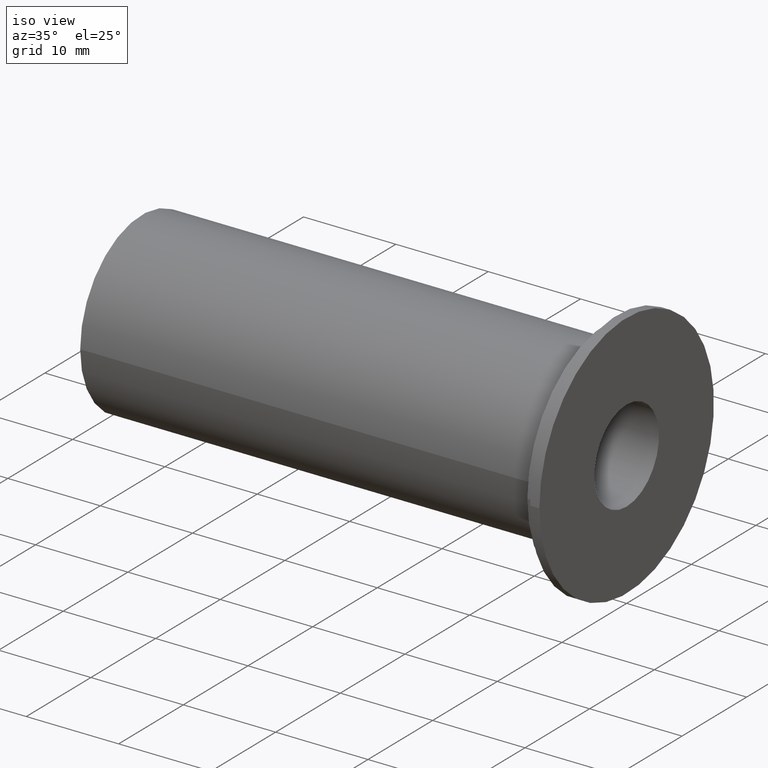
[diagram: clean part render]
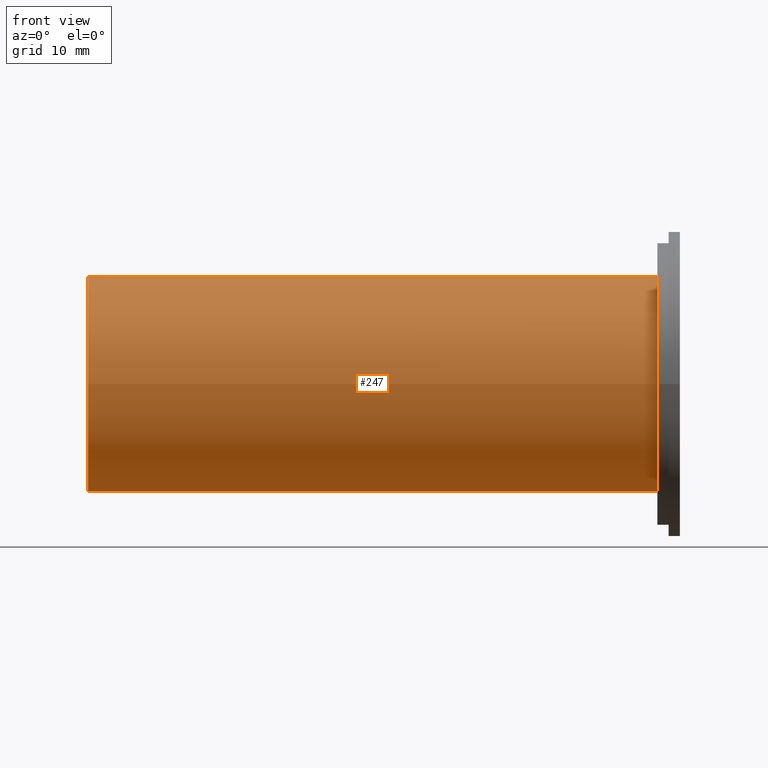
[diagram: tour spotlight — one face highlighted and labeled with its STEP entity id]
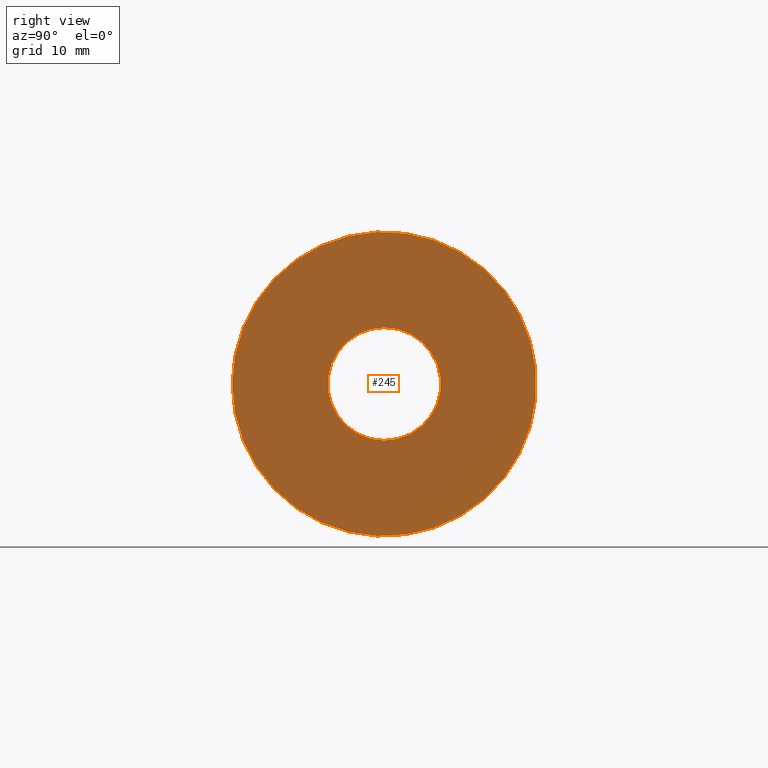
[diagram: tour spotlight — one face highlighted and labeled with its STEP entity id]
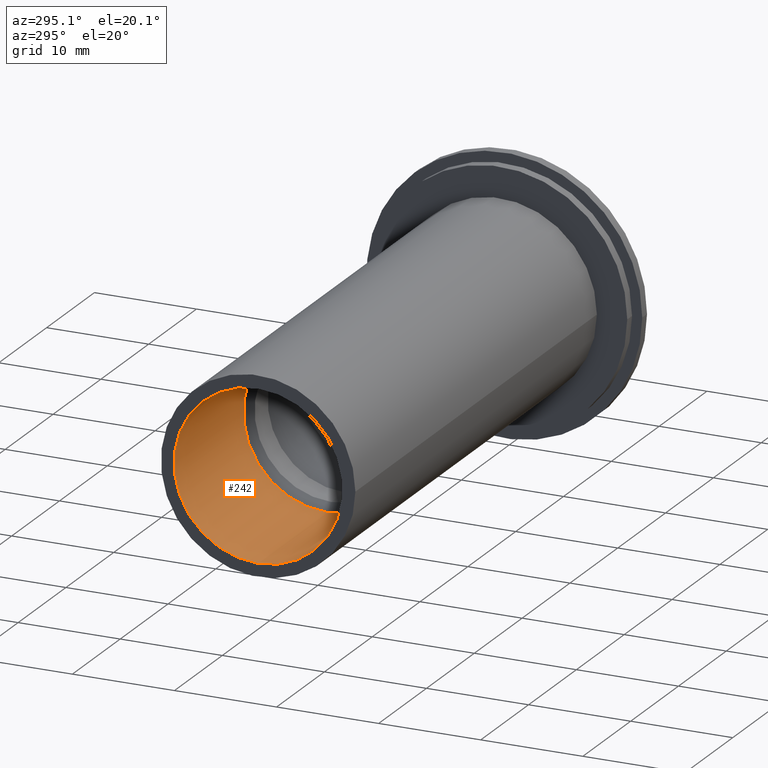
[diagram: tour spotlight — one face highlighted and labeled with its STEP entity id]
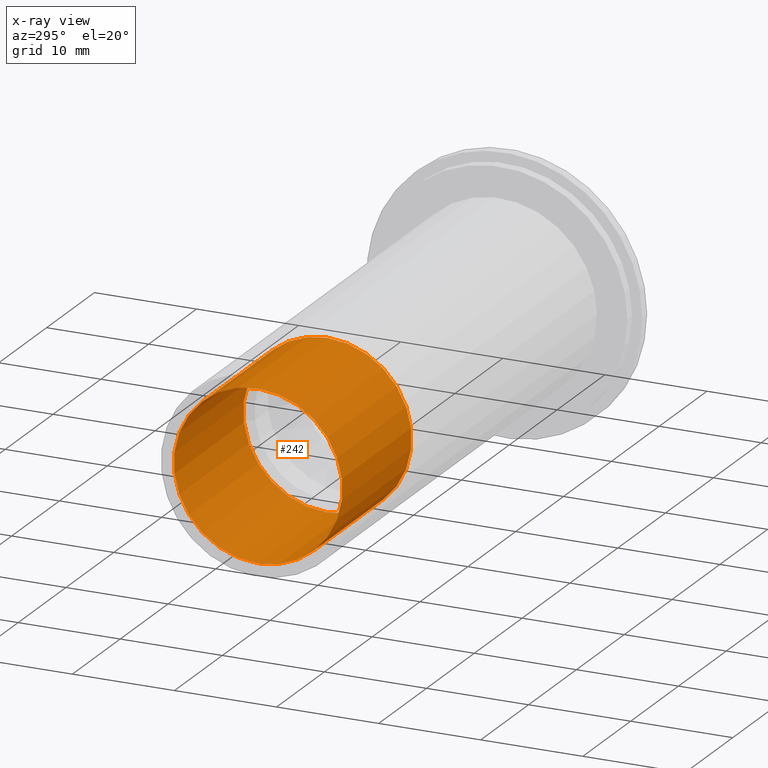
[diagram: x-ray of the same camera — body ghosted, this tour face saturated]
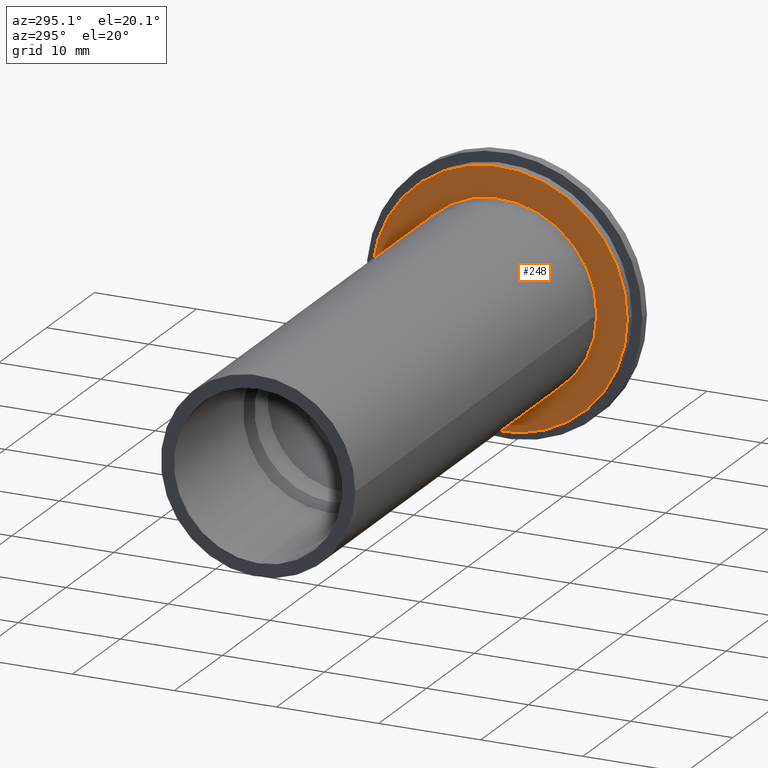
[diagram: tour spotlight — one face highlighted and labeled with its STEP entity id]
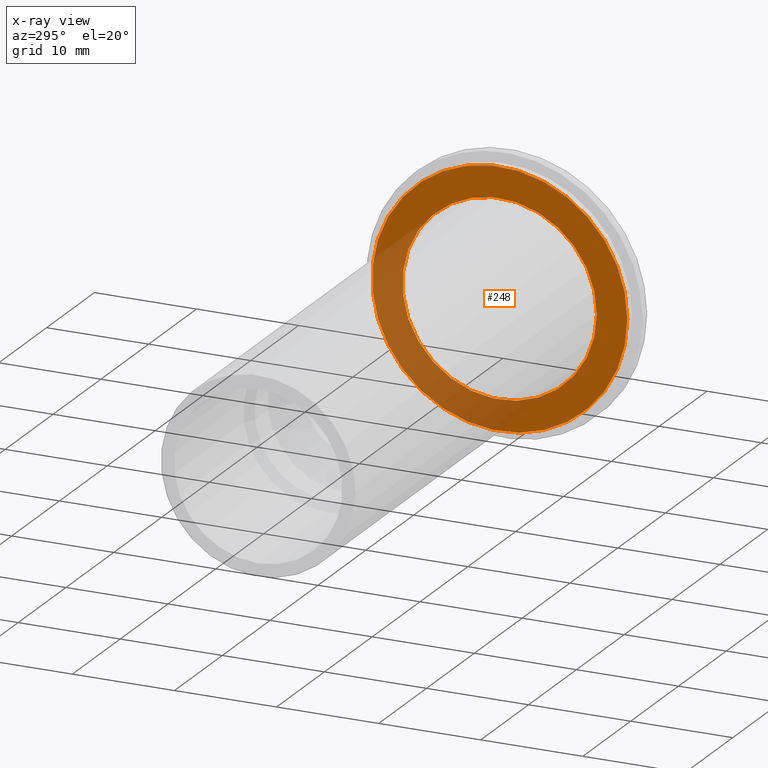
[diagram: x-ray of the same camera — body ghosted, this tour face saturated]
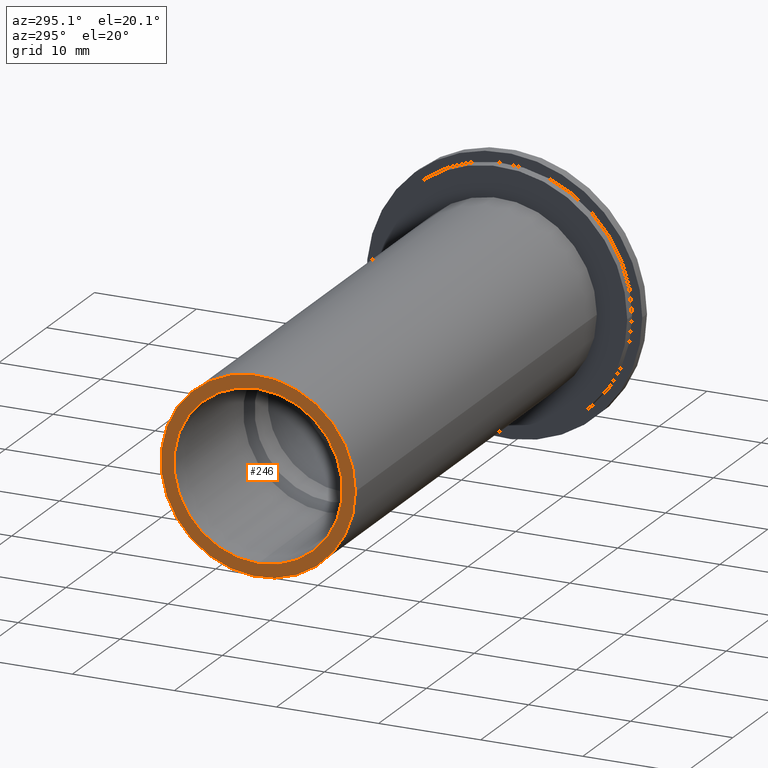
[diagram: tour spotlight — one face highlighted and labeled with its STEP entity id]
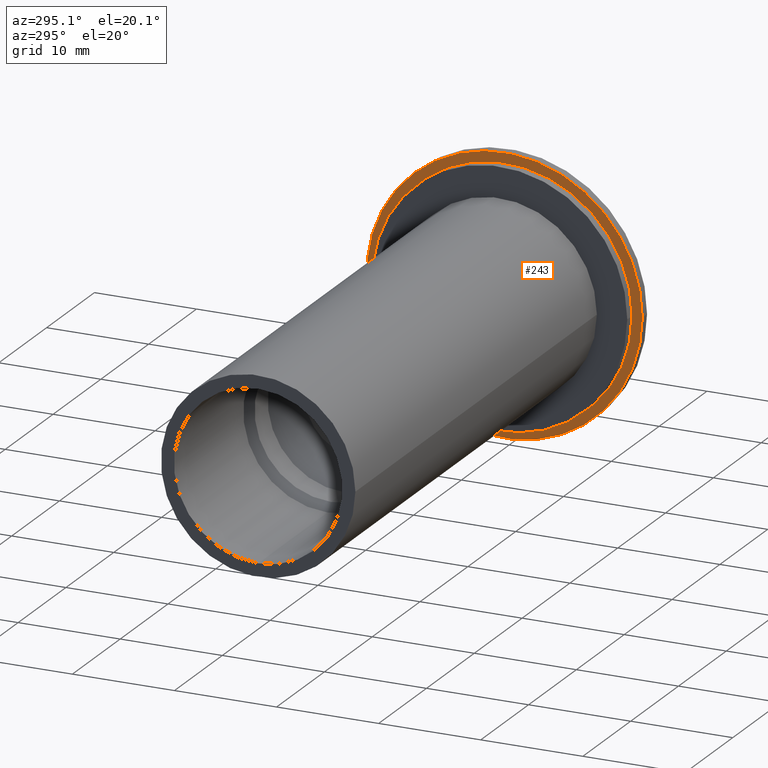
[diagram: tour spotlight — one face highlighted and labeled with its STEP entity id]
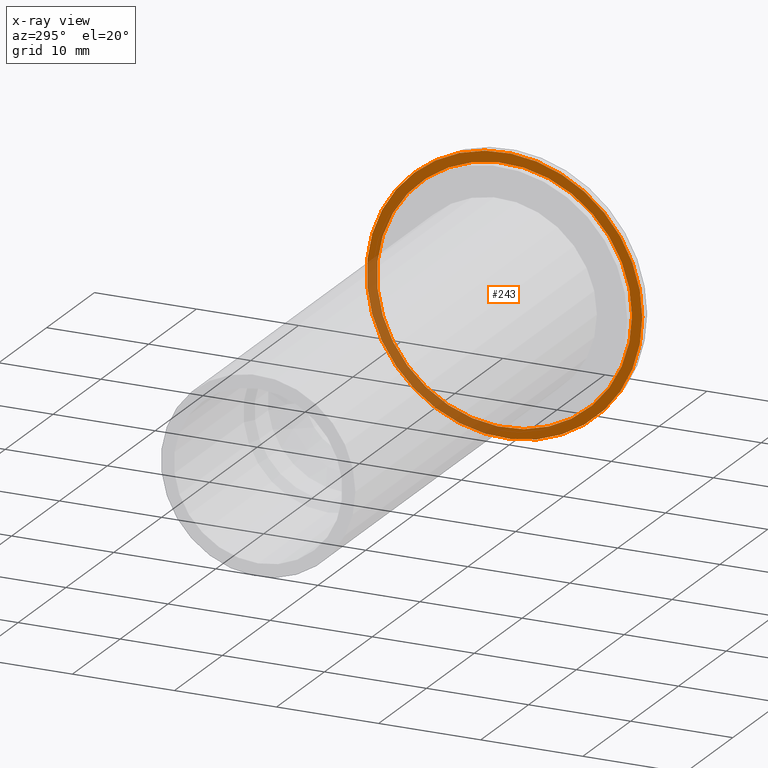
[diagram: x-ray of the same camera — body ghosted, this tour face saturated]
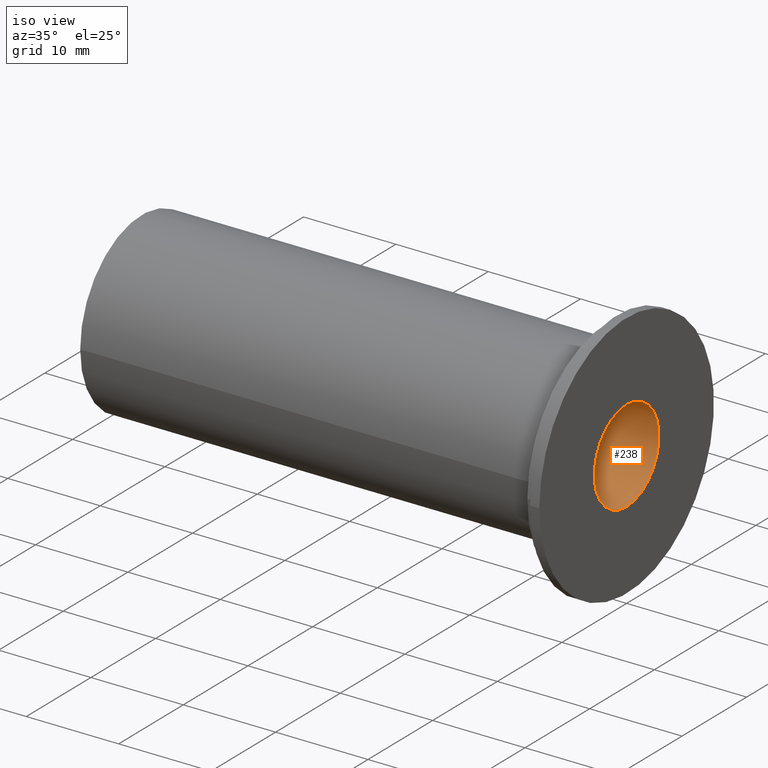
[diagram: tour spotlight — one face highlighted and labeled with its STEP entity id]
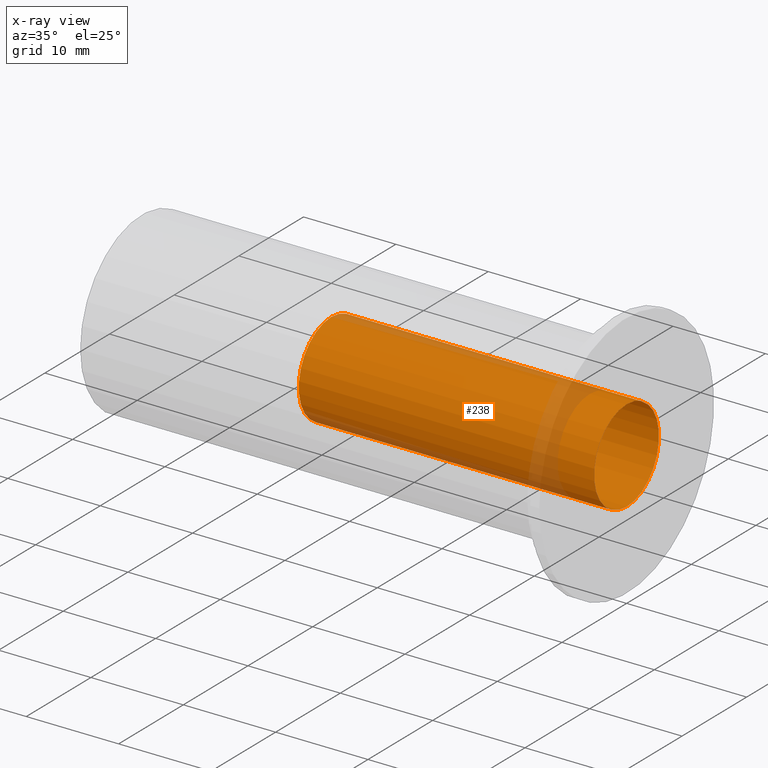
[diagram: x-ray of the same camera — body ghosted, this tour face saturated]
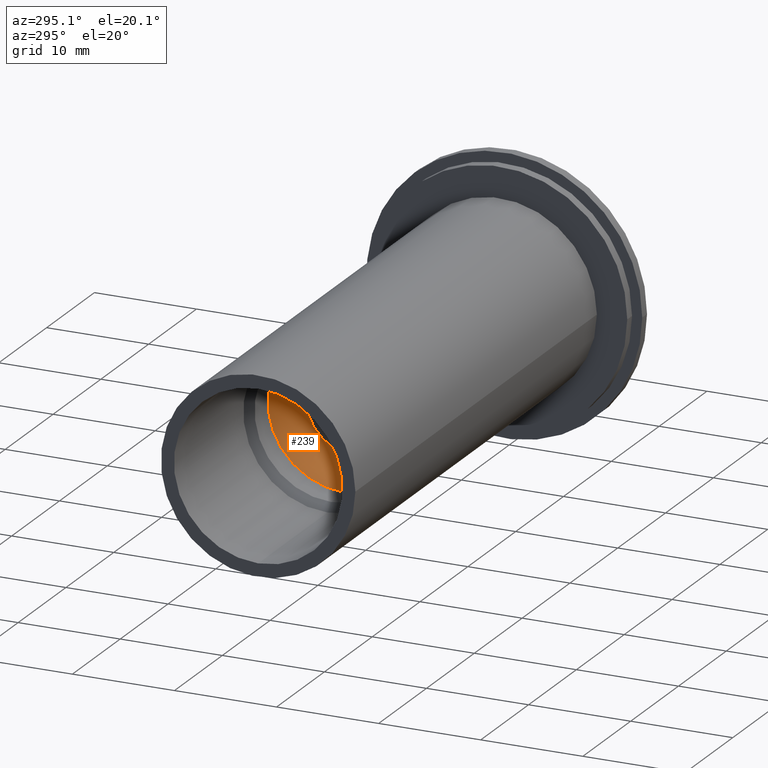
[diagram: tour spotlight — one face highlighted and labeled with its STEP entity id]
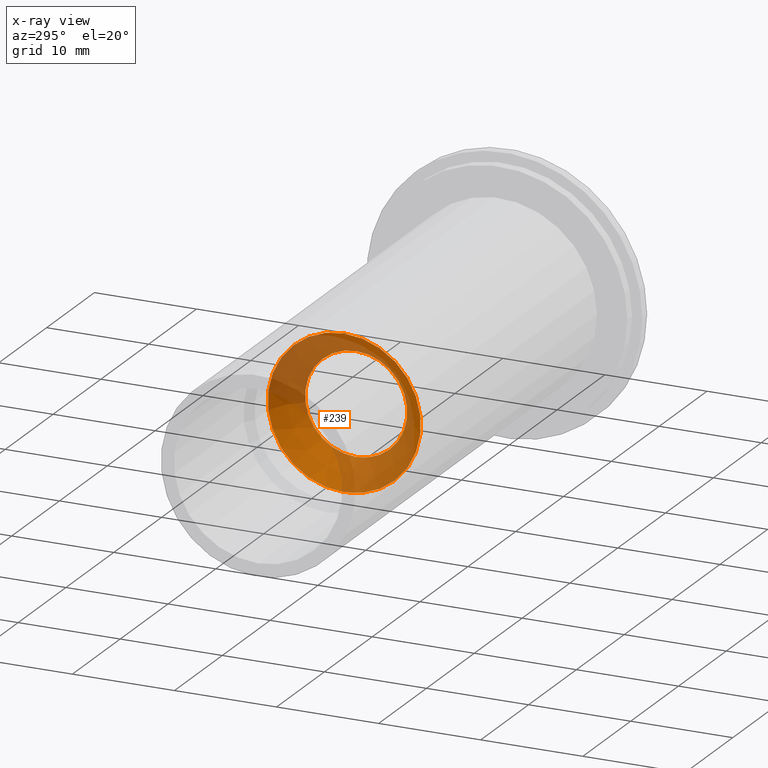
[diagram: x-ray of the same camera — body ghosted, this tour face saturated]
A machine part: a face-by-face anatomy tour. The part has 12 B-rep faces; the first image is the clean iso view, then the 8 largest visible faces are spotlighted one at a time (largest first), each with its STEP entity span.

Face 1 — front view, entity #247. In plain terms, the highlighted cylindrical surface (bore or boss wall) has radius 9.525 mm, axis along (1, 0, 0).
Definition (entity closure, byte-faithful):
#105=FACE_OUTER_BOUND('',#120,.T.);
#120=EDGE_LOOP('',(#222,#223,#224,#225));
#130=LINE('',#447,#138);
#138=VECTOR('',#366,9.525);
#150=CIRCLE('',#292,9.525);
#151=CIRCLE('',#294,9.525);
#166=VERTEX_POINT('',#442);
#167=VERTEX_POINT('',#445);
#185=EDGE_CURVE('',#166,#166,#150,.T.);
#186=EDGE_CURVE('',#167,#167,#151,.T.);
#187=EDGE_CURVE('',#167,#166,#130,.T.);
#222=ORIENTED_EDGE('',*,*,#186,.F.);
#223=ORIENTED_EDGE('',*,*,#187,.T.);
#224=ORIENTED_EDGE('',*,*,#185,.T.);
#225=ORIENTED_EDGE('',*,*,#187,.F.);
#236=CYLINDRICAL_SURFACE('',#293,9.525);
#247=ADVANCED_FACE('',(#105),#236,.T.);
#292=AXIS2_PLACEMENT_3D('',#443,#360,#361);
#293=AXIS2_PLACEMENT_3D('',#444,#362,#363);
#294=AXIS2_PLACEMENT_3D('',#446,#364,#365);
#360=DIRECTION('center_axis',(1.,0.,0.));
#361=DIRECTION('ref_axis',(0.,0.,-1.));
#362=DIRECTION('center_axis',(1.,0.,0.));
#363=DIRECTION('ref_axis',(0.,1.,0.));
#364=DIRECTION('center_axis',(1.,0.,0.));
#365=DIRECTION('ref_axis',(0.,0.,-1.));
#366=DIRECTION('',(-1.,0.,0.));
#442=CARTESIAN_POINT('',(-52.5,-9.525,-1.16647607618785E-15));
#443=CARTESIAN_POINT('Origin',(-52.5,0.,0.));
#444=CARTESIAN_POINT('Origin',(-27.25,0.,0.));
#445=CARTESIAN_POINT('',(-2.,-9.525,-1.16647607618785E-15));
#446=CARTESIAN_POINT('Origin',(-2.,0.,0.));
#447=CARTESIAN_POINT('',(-27.25,-9.525,-1.16647607618785E-15));

Face 2 — right view, entity #245. In plain terms, the highlighted planar face has unit normal (1, 0, 0).
Definition (entity closure, byte-faithful):
#87=FACE_BOUND('',#117,.T.);
#91=PLANE('',#290);
#103=FACE_OUTER_BOUND('',#116,.T.);
#116=EDGE_LOOP('',(#218));
#117=EDGE_LOOP('',(#219));
#140=CIRCLE('',#274,5.);
#149=CIRCLE('',#289,13.5);
#156=VERTEX_POINT('',#408);
#165=VERTEX_POINT('',#437);
#169=EDGE_CURVE('',#156,#156,#140,.T.);
#183=EDGE_CURVE('',#165,#165,#149,.T.);
#218=ORIENTED_EDGE('',*,*,#183,.T.);
#219=ORIENTED_EDGE('',*,*,#169,.T.);
#245=ADVANCED_FACE('',(#103,#87),#91,.T.);
#274=AXIS2_PLACEMENT_3D('',#409,#318,#319);
#289=AXIS2_PLACEMENT_3D('',#438,#353,#354);
#290=AXIS2_PLACEMENT_3D('',#440,#356,#357);
#318=DIRECTION('center_axis',(-1.,0.,0.));
#319=DIRECTION('ref_axis',(0.,0.,-1.));
#353=DIRECTION('center_axis',(1.,0.,0.));
#354=DIRECTION('ref_axis',(0.,0.,-1.));
#356=DIRECTION('center_axis',(1.,0.,0.));
#357=DIRECTION('ref_axis',(0.,0.,-1.));
#408=CARTESIAN_POINT('',(1.77635683940025E-14,-6.12323399573677E-16,5.));
#409=CARTESIAN_POINT('Origin',(1.77635683940025E-14,0.,0.));
#437=CARTESIAN_POINT('',(4.9960036108132E-15,-13.5,-1.65327317884893E-15));
#438=CARTESIAN_POINT('Origin',(4.9960036108132E-15,0.,0.));
#440=CARTESIAN_POINT('Origin',(1.33226762955019E-14,0.,0.));

Face 3 — auxiliary view, entity #242. An x-ray twin of the same camera follows (body ghosted, this face saturated) — the face is partly hidden behind the body. In plain terms, the highlighted cylindrical surface (bore or boss wall) has radius 8.25 mm, axis along (-1, 0, 0).
Definition (entity closure, byte-faithful):
#100=FACE_OUTER_BOUND('',#112,.T.);
#112=EDGE_LOOP('',(#208,#209,#210,#211));
#128=LINE('',#430,#136);
#136=VECTOR('',#344,8.25);
#145=CIRCLE('',#282,8.25);
#146=CIRCLE('',#284,8.25);
#161=VERTEX_POINT('',#424);
#162=VERTEX_POINT('',#428);
#177=EDGE_CURVE('',#161,#161,#145,.T.);
#179=EDGE_CURVE('',#162,#162,#146,.T.);
#180=EDGE_CURVE('',#162,#161,#128,.T.);
#208=ORIENTED_EDGE('',*,*,#179,.F.);
#209=ORIENTED_EDGE('',*,*,#180,.T.);
#210=ORIENTED_EDGE('',*,*,#177,.F.);
#211=ORIENTED_EDGE('',*,*,#180,.F.);
#234=CYLINDRICAL_SURFACE('',#283,8.25);
#242=ADVANCED_FACE('',(#100),#234,.F.);
#282=AXIS2_PLACEMENT_3D('',#425,#337,#338);
#283=AXIS2_PLACEMENT_3D('',#427,#340,#341);
#284=AXIS2_PLACEMENT_3D('',#429,#342,#343);
#337=DIRECTION('center_axis',(-1.,0.,0.));
#338=DIRECTION('ref_axis',(0.,0.,1.));
#340=DIRECTION('center_axis',(-1.,0.,0.));
#341=DIRECTION('ref_axis',(0.,0.,1.));
#342=DIRECTION('center_axis',(1.,0.,0.));
#343=DIRECTION('ref_axis',(0.,0.,1.));
#344=DIRECTION('',(1.,0.,0.));
#424=CARTESIAN_POINT('',(-38.,-1.01033360929657E-15,-8.25));
#425=CARTESIAN_POINT('Origin',(-38.,0.,0.));
#427=CARTESIAN_POINT('Origin',(-45.25,0.,0.));
#428=CARTESIAN_POINT('',(-52.5,-1.01033360929657E-15,-8.25));
#429=CARTESIAN_POINT('Origin',(-52.5,0.,0.));
#430=CARTESIAN_POINT('',(-45.25,-1.01033360929657E-15,-8.25));

Face 4 — auxiliary view, entity #248. An x-ray twin of the same camera follows (body ghosted, this face saturated) — the face is partly hidden behind the body. In plain terms, the highlighted planar face has unit normal (-1, 0, 0).
Definition (entity closure, byte-faithful):
#89=FACE_BOUND('',#122,.T.);
#93=PLANE('',#295);
#106=FACE_OUTER_BOUND('',#121,.T.);
#121=EDGE_LOOP('',(#226));
#122=EDGE_LOOP('',(#227));
#151=CIRCLE('',#294,9.525);
#152=CIRCLE('',#296,12.5);
#167=VERTEX_POINT('',#445);
#168=VERTEX_POINT('',#449);
#186=EDGE_CURVE('',#167,#167,#151,.T.);
#188=EDGE_CURVE('',#168,#168,#152,.T.);
#226=ORIENTED_EDGE('',*,*,#188,.F.);
#227=ORIENTED_EDGE('',*,*,#186,.T.);
#248=ADVANCED_FACE('',(#106,#89),#93,.T.);
#294=AXIS2_PLACEMENT_3D('',#446,#364,#365);
#295=AXIS2_PLACEMENT_3D('',#448,#367,#368);
#296=AXIS2_PLACEMENT_3D('',#450,#369,#370);
#364=DIRECTION('center_axis',(1.,0.,0.));
#365=DIRECTION('ref_axis',(0.,0.,-1.));
#367=DIRECTION('center_axis',(-1.,0.,0.));
#368=DIRECTION('ref_axis',(0.,0.,1.));
#369=DIRECTION('center_axis',(1.,0.,0.));
#370=DIRECTION('ref_axis',(0.,0.,-1.));
#445=CARTESIAN_POINT('',(-2.,-9.525,-1.16647607618785E-15));
#446=CARTESIAN_POINT('Origin',(-2.,0.,0.));
#448=CARTESIAN_POINT('Origin',(-2.,12.5,0.));
#449=CARTESIAN_POINT('',(-2.,-12.5,-1.53080849893419E-15));
#450=CARTESIAN_POINT('Origin',(-2.,0.,0.));

Face 5 — auxiliary view, entity #246. In plain terms, the highlighted planar face has unit normal (-1, 0, 0).
Definition (entity closure, byte-faithful):
#88=FACE_BOUND('',#119,.T.);
#92=PLANE('',#291);
#104=FACE_OUTER_BOUND('',#118,.T.);
#118=EDGE_LOOP('',(#220));
#119=EDGE_LOOP('',(#221));
#146=CIRCLE('',#284,8.25);
#150=CIRCLE('',#292,9.525);
#162=VERTEX_POINT('',#428);
#166=VERTEX_POINT('',#442);
#179=EDGE_CURVE('',#162,#162,#146,.T.);
#185=EDGE_CURVE('',#166,#166,#150,.T.);
#220=ORIENTED_EDGE('',*,*,#185,.F.);
#221=ORIENTED_EDGE('',*,*,#179,.T.);
#246=ADVANCED_FACE('',(#104,#88),#92,.T.);
#284=AXIS2_PLACEMENT_3D('',#429,#342,#343);
#291=AXIS2_PLACEMENT_3D('',#441,#358,#359);
#292=AXIS2_PLACEMENT_3D('',#443,#360,#361);
#342=DIRECTION('center_axis',(1.,0.,0.));
#343=DIRECTION('ref_axis',(0.,0.,1.));
#358=DIRECTION('center_axis',(-1.,0.,0.));
#359=DIRECTION('ref_axis',(0.,0.,1.));
#360=DIRECTION('center_axis',(1.,0.,0.));
#361=DIRECTION('ref_axis',(0.,0.,-1.));
#428=CARTESIAN_POINT('',(-52.5,-1.01033360929657E-15,-8.25));
#429=CARTESIAN_POINT('Origin',(-52.5,0.,0.));
#441=CARTESIAN_POINT('Origin',(-52.5,9.525,0.));
#442=CARTESIAN_POINT('',(-52.5,-9.525,-1.16647607618785E-15));
#443=CARTESIAN_POINT('Origin',(-52.5,0.,0.));

Face 6 — auxiliary view, entity #243. An x-ray twin of the same camera follows (body ghosted, this face saturated) — the face is partly hidden behind the body. In plain terms, the highlighted planar face has unit normal (-1, 0, 0).
Definition (entity closure, byte-faithful):
#86=FACE_BOUND('',#114,.T.);
#90=PLANE('',#285);
#101=FACE_OUTER_BOUND('',#113,.T.);
#113=EDGE_LOOP('',(#212));
#114=EDGE_LOOP('',(#213));
#147=CIRCLE('',#286,13.5);
#148=CIRCLE('',#287,12.5);
#163=VERTEX_POINT('',#432);
#164=VERTEX_POINT('',#434);
#181=EDGE_CURVE('',#163,#163,#147,.T.);
#182=EDGE_CURVE('',#164,#164,#148,.T.);
#212=ORIENTED_EDGE('',*,*,#181,.F.);
#213=ORIENTED_EDGE('',*,*,#182,.T.);
#243=ADVANCED_FACE('',(#101,#86),#90,.T.);
#285=AXIS2_PLACEMENT_3D('',#431,#345,#346);
#286=AXIS2_PLACEMENT_3D('',#433,#347,#348);
#287=AXIS2_PLACEMENT_3D('',#435,#349,#350);
#345=DIRECTION('center_axis',(-1.,0.,0.));
#346=DIRECTION('ref_axis',(0.,0.,1.));
#347=DIRECTION('center_axis',(1.,0.,0.));
#348=DIRECTION('ref_axis',(0.,0.,-1.));
#349=DIRECTION('center_axis',(1.,0.,0.));
#350=DIRECTION('ref_axis',(0.,0.,-1.));
#431=CARTESIAN_POINT('Origin',(-0.999999999999996,13.5,0.));
#432=CARTESIAN_POINT('',(-0.999999999999996,-13.5,-1.65327317884893E-15));
#433=CARTESIAN_POINT('Origin',(-0.999999999999996,0.,0.));
#434=CARTESIAN_POINT('',(-0.999999999999996,-12.5,-1.53080849893419E-15));
#435=CARTESIAN_POINT('Origin',(-0.999999999999996,0.,0.));

Face 7 — iso view, entity #238. An x-ray twin of the same camera follows (body ghosted, this face saturated) — the face is partly hidden behind the body. In plain terms, the highlighted cylindrical surface (bore or boss wall) has radius 5 mm, axis along (1, 0, 0).
Definition (entity closure, byte-faithful):
#96=FACE_OUTER_BOUND('',#108,.T.);
#108=EDGE_LOOP('',(#190,#191,#192,#193,#194));
#124=LINE('',#411,#132);
#132=VECTOR('',#320,5.);
#140=CIRCLE('',#274,5.);
#141=CIRCLE('',#275,5.);
#142=CIRCLE('',#276,5.);
#156=VERTEX_POINT('',#408);
#157=VERTEX_POINT('',#410);
#158=VERTEX_POINT('',#412);
#169=EDGE_CURVE('',#156,#156,#140,.T.);
#170=EDGE_CURVE('',#156,#157,#124,.T.);
#171=EDGE_CURVE('',#158,#157,#141,.T.);
#172=EDGE_CURVE('',#157,#158,#142,.T.);
#190=ORIENTED_EDGE('',*,*,#169,.F.);
#191=ORIENTED_EDGE('',*,*,#170,.T.);
#192=ORIENTED_EDGE('',*,*,#171,.F.);
#193=ORIENTED_EDGE('',*,*,#172,.F.);
#194=ORIENTED_EDGE('',*,*,#170,.F.);
#232=CYLINDRICAL_SURFACE('',#273,5.);
#238=ADVANCED_FACE('',(#96),#232,.F.);
#273=AXIS2_PLACEMENT_3D('',#407,#316,#317);
#274=AXIS2_PLACEMENT_3D('',#409,#318,#319);
#275=AXIS2_PLACEMENT_3D('',#413,#321,#322);
#276=AXIS2_PLACEMENT_3D('',#414,#323,#324);
#316=DIRECTION('center_axis',(1.,0.,0.));
#317=DIRECTION('ref_axis',(0.,0.,-1.));
#318=DIRECTION('center_axis',(-1.,0.,0.));
#319=DIRECTION('ref_axis',(0.,0.,-1.));
#320=DIRECTION('',(-1.,0.,0.));
#321=DIRECTION('center_axis',(1.,0.,0.));
#322=DIRECTION('ref_axis',(0.,0.,-1.));
#323=DIRECTION('center_axis',(1.,0.,0.));
#324=DIRECTION('ref_axis',(0.,0.,-1.));
#407=CARTESIAN_POINT('Origin',(-64.9172550251472,0.,0.));
#408=CARTESIAN_POINT('',(1.77635683940025E-14,-6.12323399573677E-16,5.));
#409=CARTESIAN_POINT('Origin',(1.77635683940025E-14,0.,0.));
#410=CARTESIAN_POINT('',(-32.,-6.12323399573677E-16,5.));
#411=CARTESIAN_POINT('',(-64.9172550251472,-6.12323399573677E-16,5.));
#412=CARTESIAN_POINT('',(-32.,-6.12323399573676E-16,-5.));
#413=CARTESIAN_POINT('Origin',(-32.,0.,0.));
#414=CARTESIAN_POINT('Origin',(-32.,0.,0.));

Face 8 — auxiliary view, entity #239. An x-ray twin of the same camera follows (body ghosted, this face saturated) — the face is partly hidden behind the body. In plain terms, the highlighted conical surface has half-angle 45 deg.
Definition (entity closure, byte-faithful):
#94=CONICAL_SURFACE('',#277,3.75,0.785398163397448);
#97=FACE_OUTER_BOUND('',#109,.T.);
#109=EDGE_LOOP('',(#195,#196,#197,#198,#199));
#125=LINE('',#418,#133);
#133=VECTOR('',#329,3.75);
#141=CIRCLE('',#275,5.);
#142=CIRCLE('',#276,5.);
#143=CIRCLE('',#278,7.5);
#157=VERTEX_POINT('',#410);
#158=VERTEX_POINT('',#412);
#159=VERTEX_POINT('',#416);
#171=EDGE_CURVE('',#158,#157,#141,.T.);
#172=EDGE_CURVE('',#157,#158,#142,.T.);
#173=EDGE_CURVE('',#159,#159,#143,.T.);
#174=EDGE_CURVE('',#159,#158,#125,.T.);
#195=ORIENTED_EDGE('',*,*,#173,.T.);
#196=ORIENTED_EDGE('',*,*,#174,.T.);
#197=ORIENTED_EDGE('',*,*,#171,.T.);
#198=ORIENTED_EDGE('',*,*,#172,.T.);
#199=ORIENTED_EDGE('',*,*,#174,.F.);
#239=ADVANCED_FACE('',(#97),#94,.F.);
#275=AXIS2_PLACEMENT_3D('',#413,#321,#322);
#276=AXIS2_PLACEMENT_3D('',#414,#323,#324);
#277=AXIS2_PLACEMENT_3D('',#415,#325,#326);
#278=AXIS2_PLACEMENT_3D('',#417,#327,#328);
#321=DIRECTION('center_axis',(1.,0.,0.));
#322=DIRECTION('ref_axis',(0.,0.,-1.));
#323=DIRECTION('center_axis',(1.,0.,0.));
#324=DIRECTION('ref_axis',(0.,0.,-1.));
#325=DIRECTION('center_axis',(-1.,0.,0.));
#326=DIRECTION('ref_axis',(0.,0.,1.));
#327=DIRECTION('center_axis',(-1.,0.,0.));
#328=DIRECTION('ref_axis',(0.,0.,1.));
#329=DIRECTION('',(0.707106781186548,8.65956056235493E-17,0.707106781186547));
#410=CARTESIAN_POINT('',(-32.,-6.12323399573677E-16,5.));
#412=CARTESIAN_POINT('',(-32.,-6.12323399573676E-16,-5.));
#413=CARTESIAN_POINT('Origin',(-32.,0.,0.));
#414=CARTESIAN_POINT('Origin',(-32.,0.,0.));
#415=CARTESIAN_POINT('Origin',(-30.75,0.,0.));
#416=CARTESIAN_POINT('',(-34.5,-9.18485099360515E-16,-7.5));
#417=CARTESIAN_POINT('Origin',(-34.5,0.,0.));
#418=CARTESIAN_POINT('',(-30.75,-4.59242549680257E-16,-3.75));